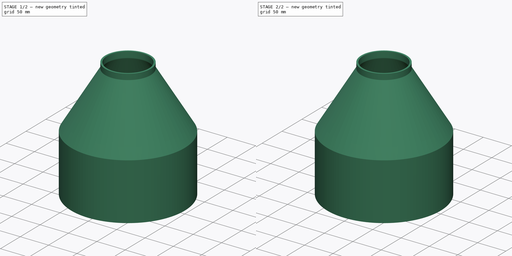
[diagram: build sequence overview — one tinted view per stage of 2, left to right]
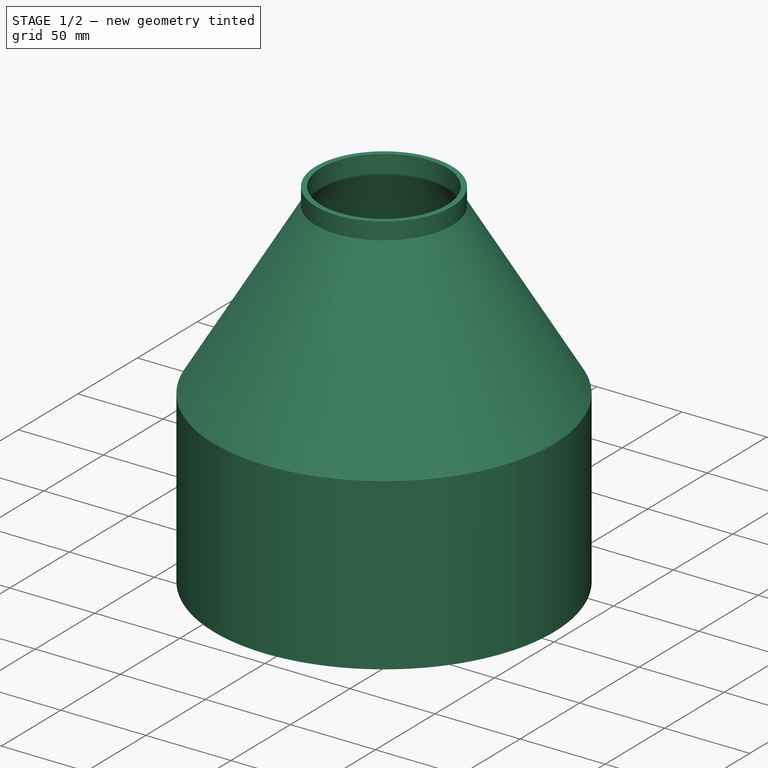
[diagram: stage 1 of 2 — iso view after this stage's code; geometry added in this stage tinted green]
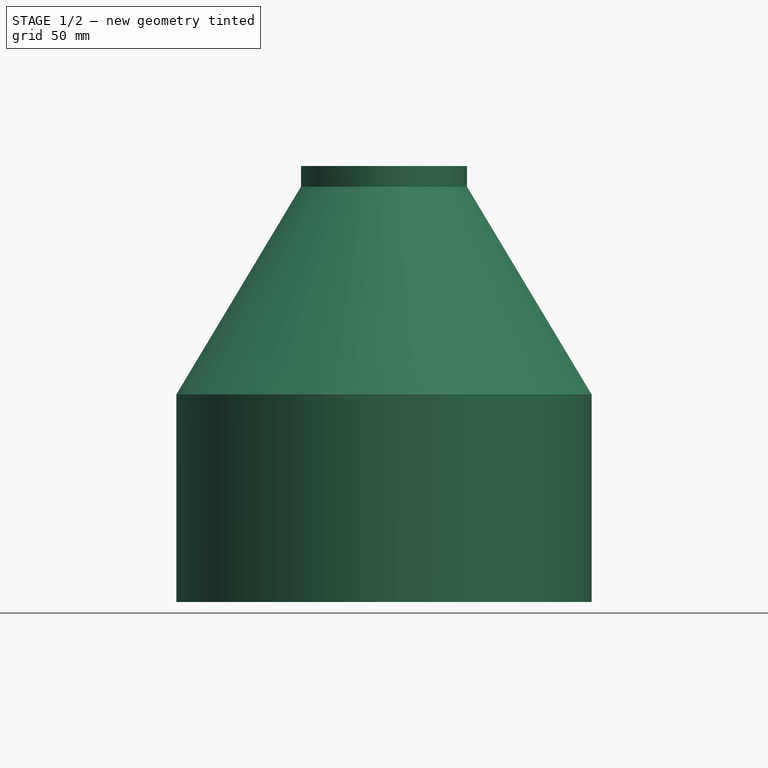
[diagram: stage 1 of 2 — front view after this stage's code; geometry added in this stage tinted green]
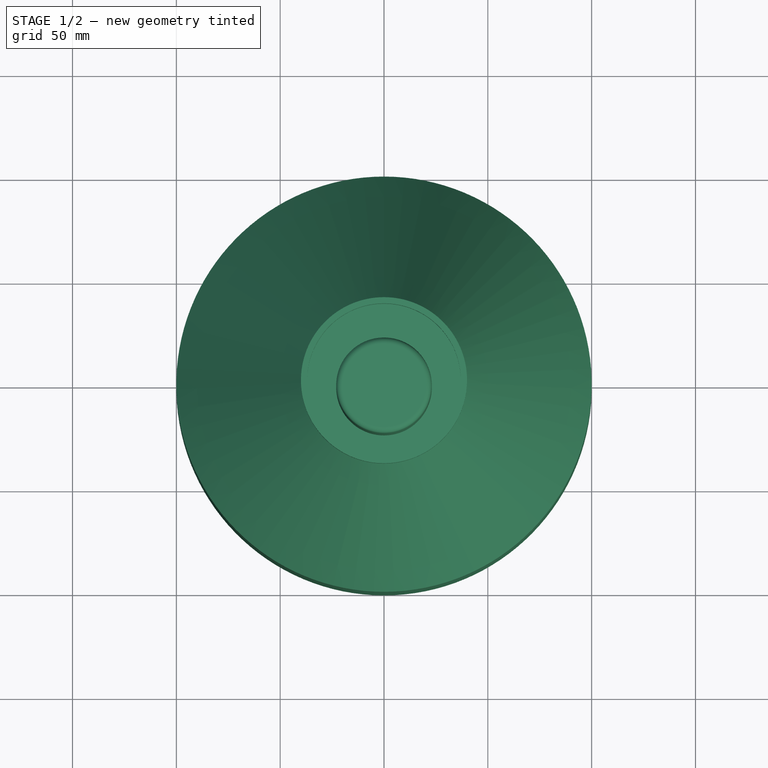
[diagram: stage 1 of 2 — top view after this stage's code; geometry added in this stage tinted green]
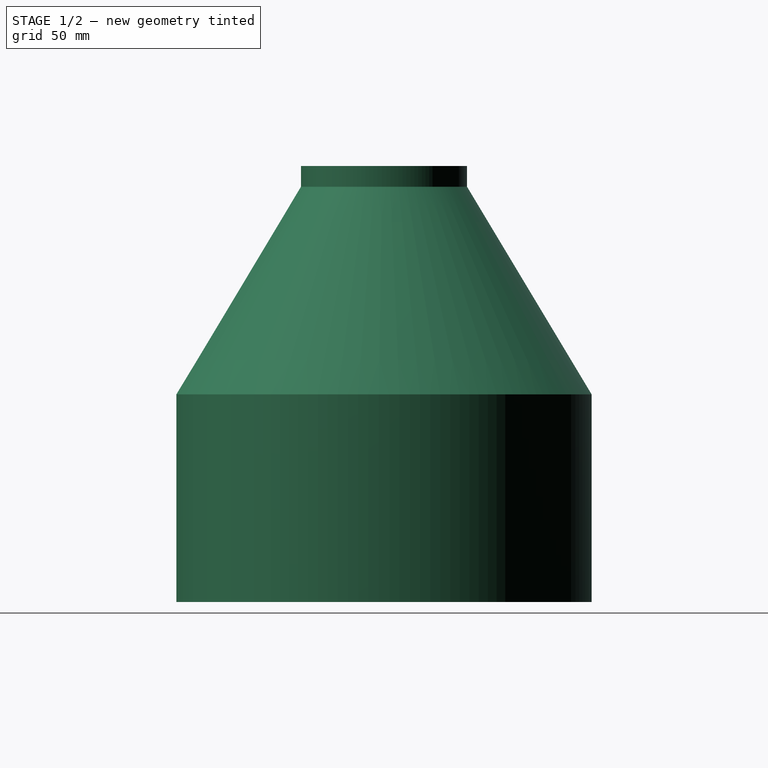
[diagram: stage 1 of 2 — right view after this stage's code; geometry added in this stage tinted green]
FCSTD DOCUMENT  (FreeCAD 1.0R39109 (Git))
Label: cyclone_separator
License: All rights reserved
LicenseURL: https://en.wikipedia.org/wiki/All_rights_reserved
objects: Sketcher::SketchObject×1, PartDesign::Revolution×1, PartDesign::Thickness×1, PartDesign::SubtractiveCylinder×1, PartDesign::Body×1
note: 12 computed .brp shape members not serialized (recipe doc carries the construction recipe); baked Part::Feature solids carry a one-line shape summary decoded from their .brp

FEATURE [Sketcher::SketchObject] Sketch
  ArcFitTolerance = 1e-06
  AttachmentSupport = -> [YZ_Plane]
  FullyConstrained = true
  MakeInternals = false
  MapMode = 5
  Placement = pos=(0,0,0) rot=(0.57735,0.57735,0.57735;2.0944rad)
  sketch-geometry (8):
    g0: LineSegment StartX=20 StartY=0 StartZ=0 EndX=20 EndY=70 EndZ=0
    g1: LineSegment StartX=20 StartY=70 StartZ=0 EndX=0 EndY=70 EndZ=0
    g2: LineSegment StartX=20 StartY=0 StartZ=0 EndX=100 EndY=0 EndZ=0
    g3: LineSegment StartX=100 StartY=0 StartZ=0 EndX=100 EndY=100 EndZ=0
    g4: LineSegment StartX=100 StartY=100 StartZ=0 EndX=40 EndY=200 EndZ=0
    g5: LineSegment StartX=40 StartY=200 StartZ=0 EndX=40 EndY=210 EndZ=0
    g6: LineSegment StartX=40 StartY=210 StartZ=0 EndX=0 EndY=210 EndZ=0
    g7: LineSegment StartX=0 StartY=210 StartZ=0 EndX=0 EndY=70 EndZ=0
  constraints (24):
    c: PointOnObject(g0,g-1)
    c: Vertical(g0)
    c: Coincident(g1,g0)
    c: PointOnObject(g1,g-2)
    c: Horizontal(g1)
    c: Coincident(g2,g0)
    c: PointOnObject(g2,g-1)
    c: Coincident(g3,g2)
    c: Vertical(g3)
    c: Coincident(g4,g3)
    c: Coincident(g5,g4)
    c: Vertical(g5)
    c: Coincident(g6,g5)
    c: PointOnObject(g6,g-2)
    c: Horizontal(g6)
    c: Coincident(g7,g6)
    c: Coincident(g7,g1)
    c: DistanceX(g-1,g2) = 100
    c: Distance(g1,g1) = 20
    c: DistanceY(g3,g3) = 100
    c: DistanceY(g-1,g4) = 200
    c: Distance(g6,g6) = 40
    c: DistanceY(g5,g5) = 10
    c: DistanceY(g-1,g0) = 70
FEATURE [PartDesign::Revolution] Revolution
  Angle = 360
  Angle2 = 60
  Axis = (0,0,1)
  Base = (0,0,0)
  Placement = pos=(0,0,0) rot=(1,1,1;2.0944rad)
  Profile = -> Sketch
  ReferenceAxis = -> Sketch [V_Axis]
  Refine = true
  Reversed = true
  Suppressed = false
  Type = 0
FEATURE [PartDesign::Thickness] Thickness
  Base = -> Revolution [Face3]
  BaseFeature = -> Revolution
  Intersection = false
  Join = 0
  Mode = 0
  Refine = true
  Reversed = true
  SupportTransform = false
  Suppressed = false
  Value = 3
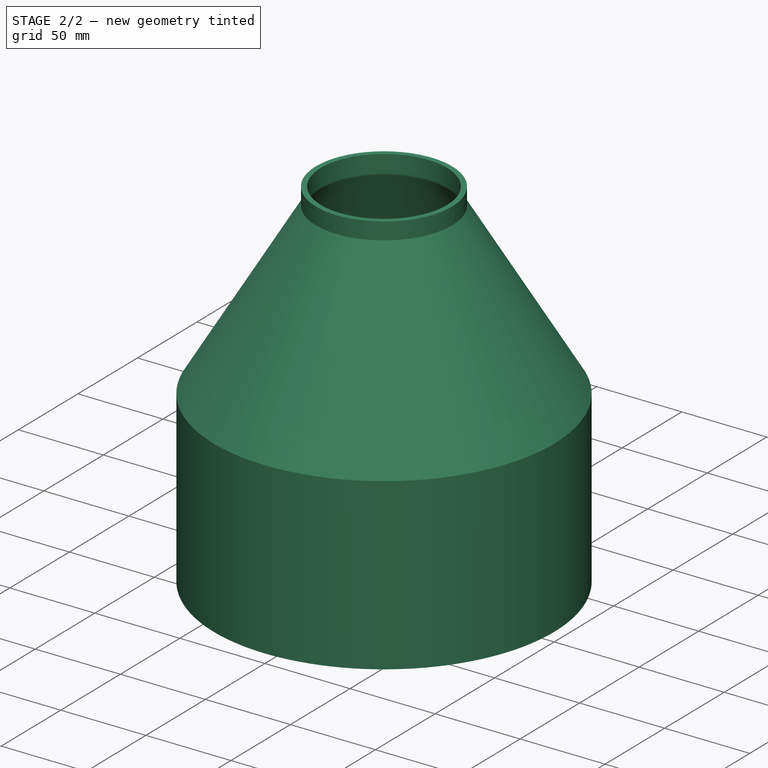
[diagram: stage 2 of 2 — iso view after this stage's code; geometry added in this stage tinted green]
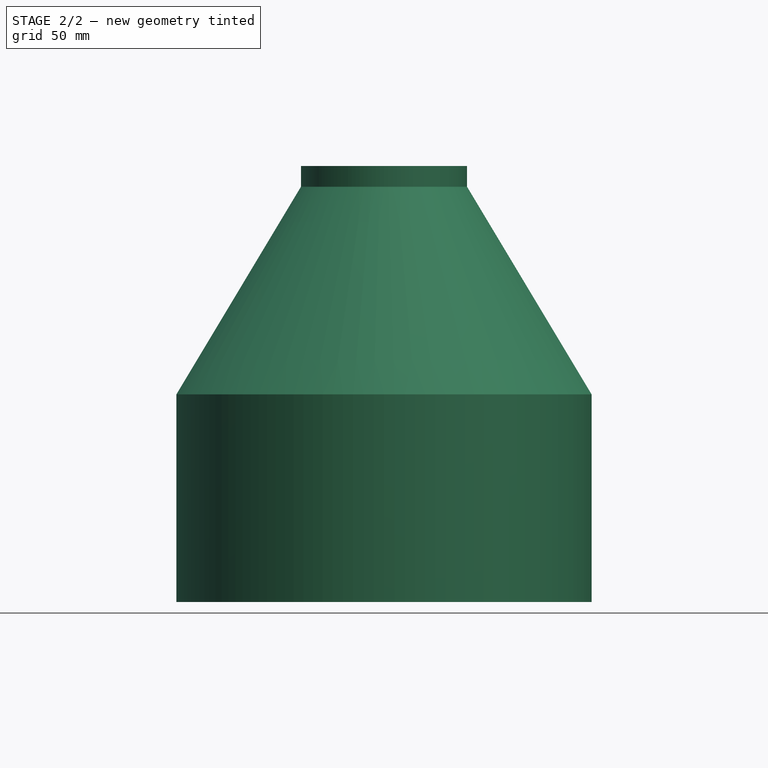
[diagram: stage 2 of 2 — front view after this stage's code; geometry added in this stage tinted green]
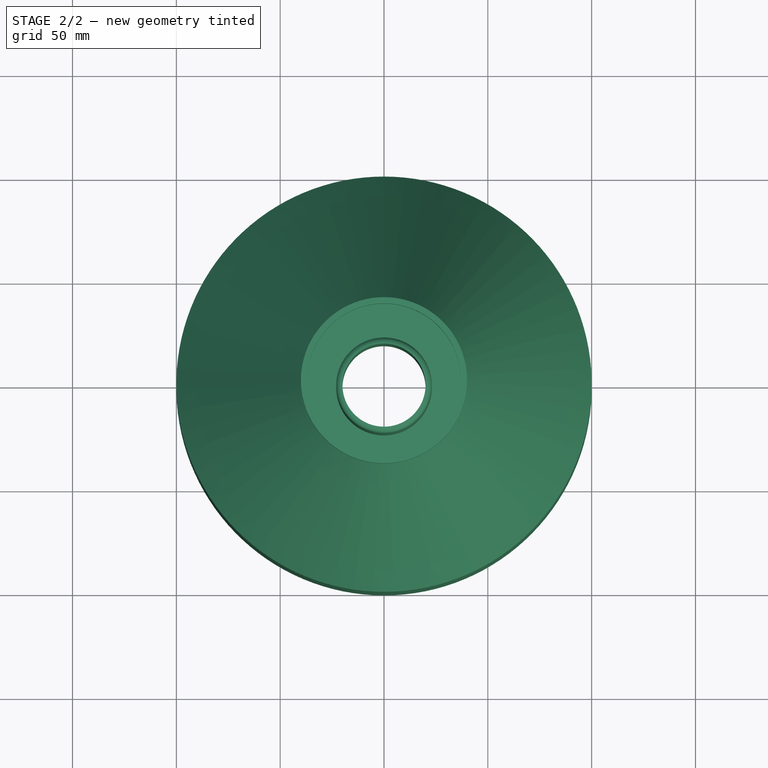
[diagram: stage 2 of 2 — top view after this stage's code; geometry added in this stage tinted green]
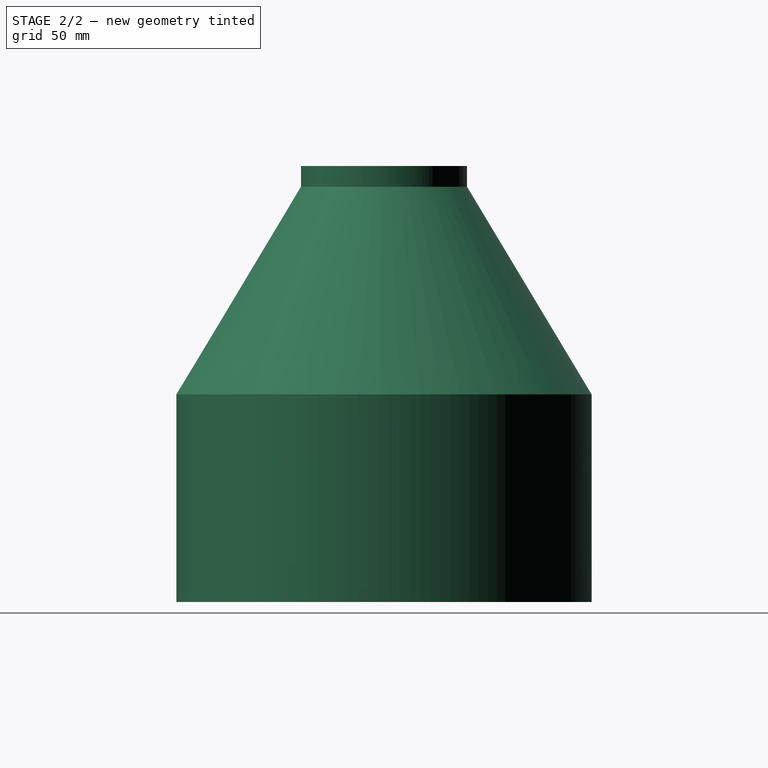
[diagram: stage 2 of 2 — right view after this stage's code; geometry added in this stage tinted green]
FEATURE [PartDesign::SubtractiveCylinder] Cylinder
  Angle = 360
  AttacherType = Attacher::AttachEngine3D
  AttachmentSupport = -> [XY_Plane]
  BaseFeature = -> Thickness
  FirstAngle = 0
  Height = 100
  MapMode = 5
  Radius = 20
  Refine = true
  SecondAngle = 0
  Suppressed = false
FEATURE [PartDesign::Body] Body
  AllowCompound = false
  Group = -> [Sketch,Revolution,Thickness,Cylinder]
  Origin = -> Origin
  Tip = -> Cylinder
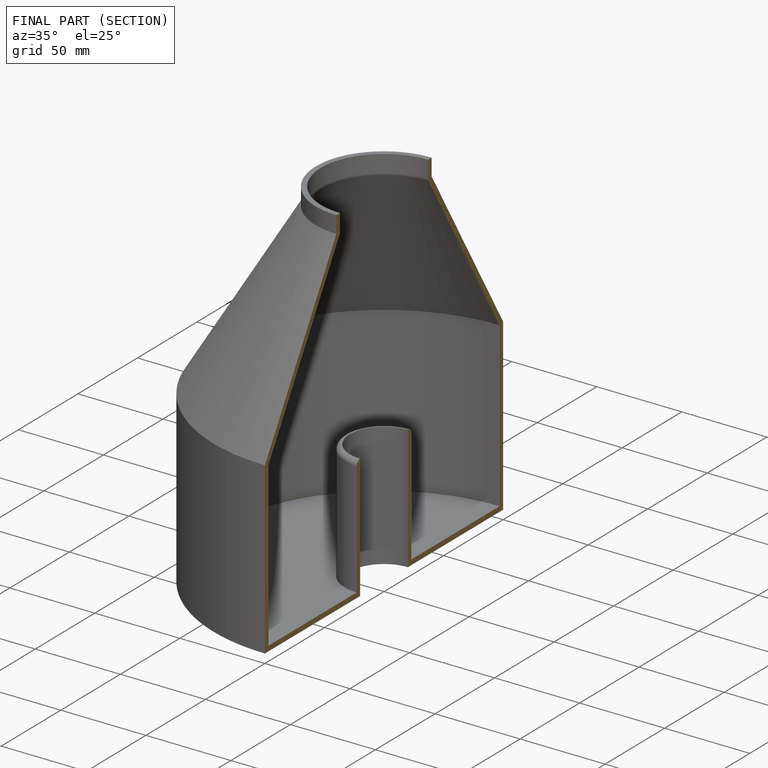
[diagram: finished part — half-section view (interior)]
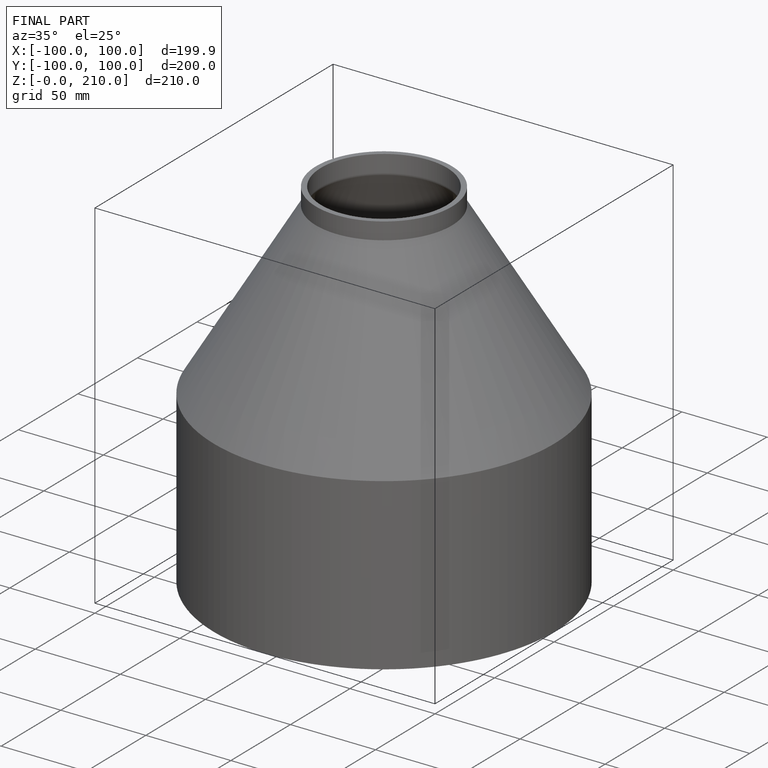
[diagram: finished part — iso view with bounding-box wireframe]
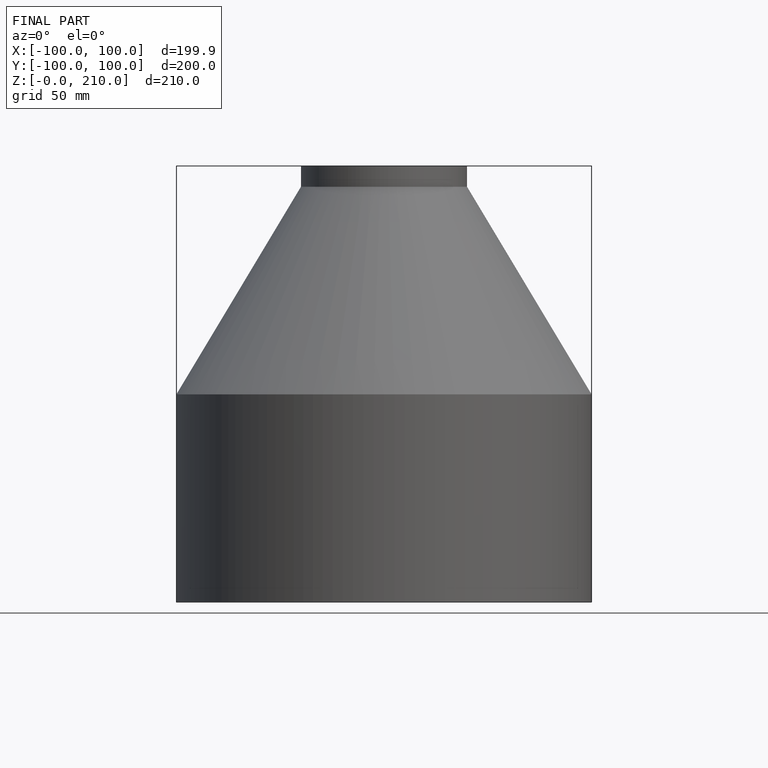
[diagram: finished part — front view with bounding-box wireframe]
